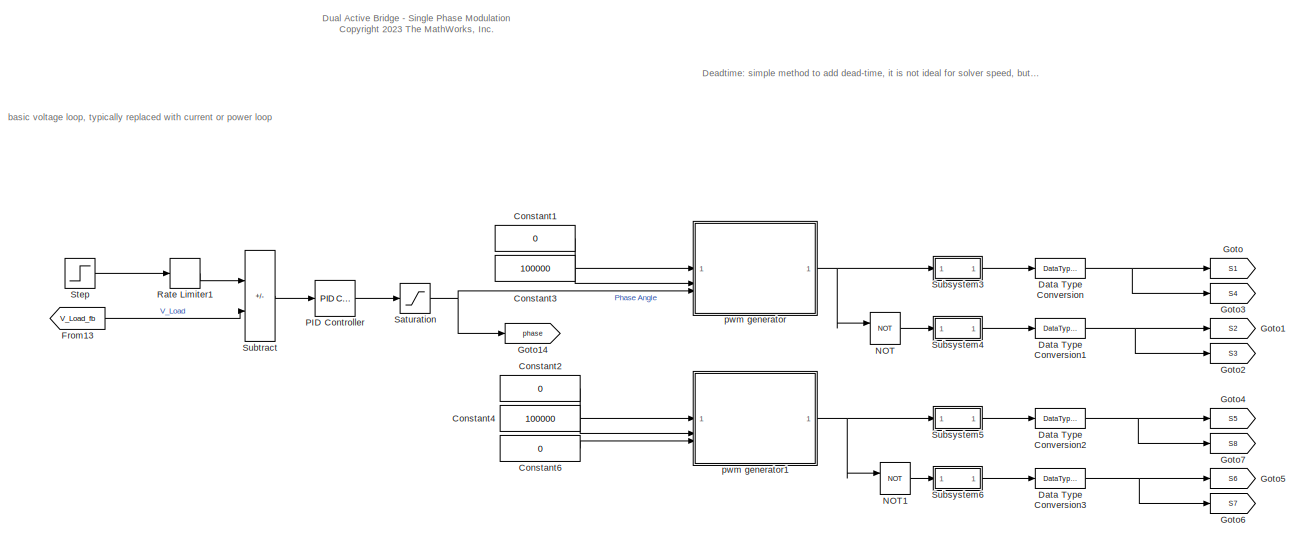
[diagram: root canvas - part 1/3, top center region]
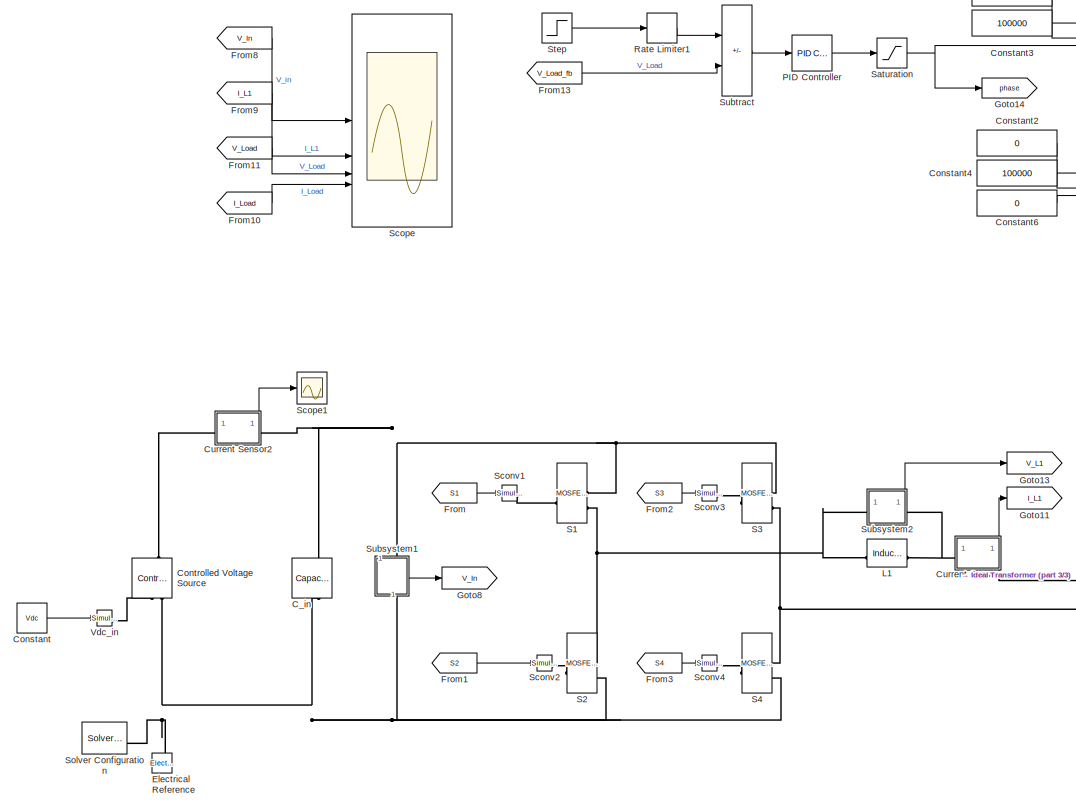
[diagram: root canvas - part 2/3, left side, full height]
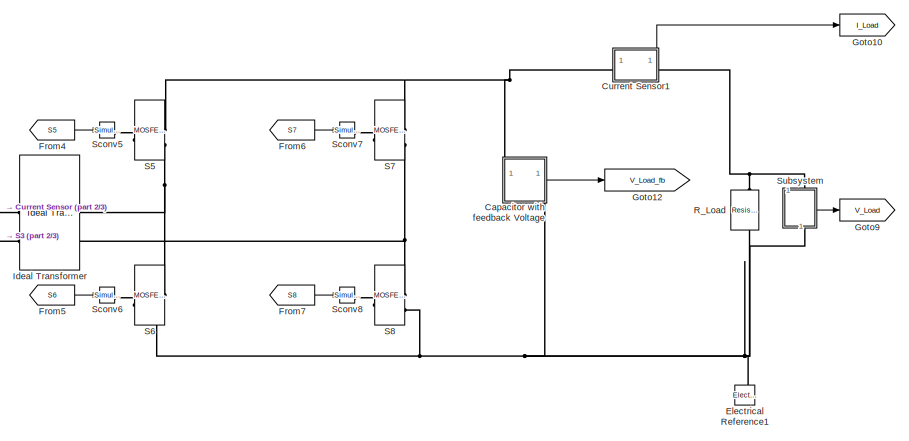
[diagram: root canvas - part 3/3, bottom right region]
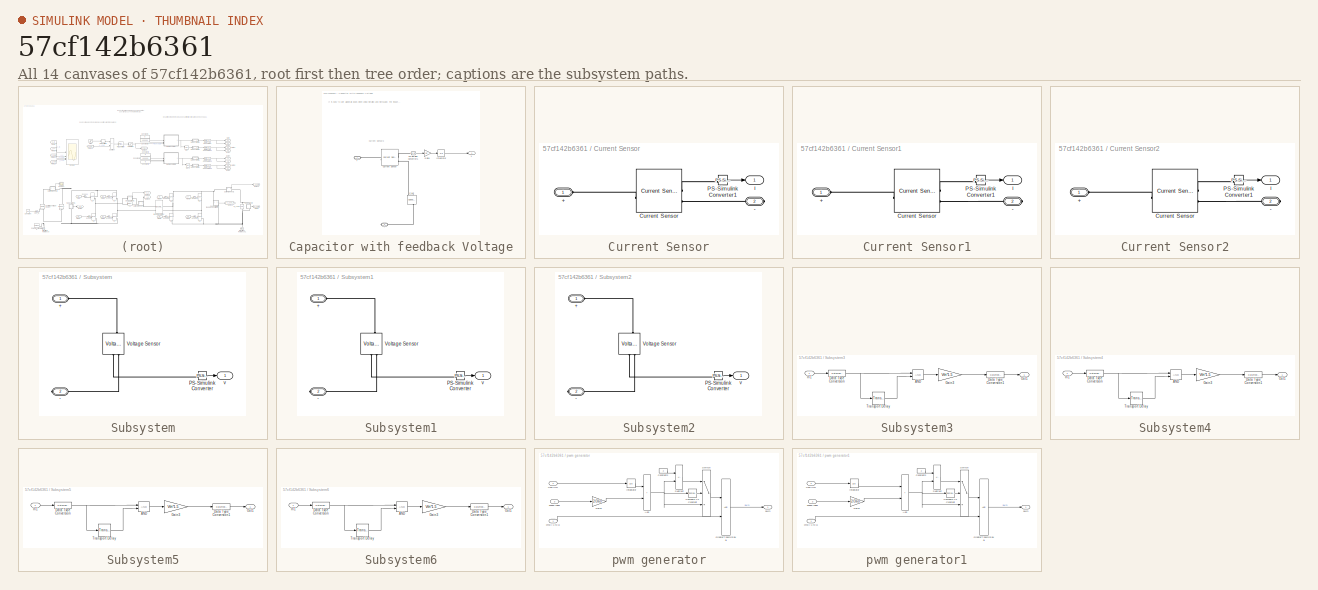
[diagram: thumbnail index - all 14 canvases of the model, root first then tree order]
MODEL slx_57cf142b6361
KIND model
CONFIG AbsTol = auto
CONFIG EnableMultiTasking = off
CONFIG FixedStep = auto
CONFIG MaxStep = 1/100000
CONFIG MinStep = auto
CONFIG RelTol = 1e-3
CONFIG SampleTimeConstraint = Unconstrained
CONFIG SolverName = ode23t
CONFIG StartFcn = tic
CONFIG StartTime = 0.0
CONFIG StopFcn = toc
CONFIG StopTime = 1/100000*10000
BLOCK [Reference] C_in  REF=fl_lib/Electrical/Electrical Elements/Capacitor
  NameLocation = left
  SourceBlock = fl_lib/Electrical/Electrical Elements/Capacitor
  SourceType = Capacitor
BLOCK [SubSystem] Capacitor with feedback Voltage
  PortSchema = {"entries":[{"content":{"sides":[{"content":{"connectorIds":[]},"type":"ConnectorPlacement.EquallySpacedRectSide","uuid":"5da35822-cc2b-4e57-8881-bcae1460177c"},{"content":{"connectorIds":["Out1"],"side":"RIGHT"},"type":"ConnectorPlacement.EquallySpacedRectSide","uuid":"59b12fbe-0c29-41c5-8e85-a266901cfbba"},{"content":{"connectorIds":["LConn1"],"side":"TOP"},"type":"ConnectorPlacement.EquallySpac...<+395ch>
BLOCK [PMIOPort] Capacitor with feedback Voltage/+
  Side = Left
BLOCK [PMIOPort] Capacitor with feedback Voltage/-
  Port = 2
  Side = Right
BLOCK [Reference] Capacitor with feedback Voltage/C_out  REF=fl_lib/Electrical/Electrical Elements/Capacitor
  NameLocation = left
  SourceBlock = fl_lib/Electrical/Electrical Elements/Capacitor
  SourceType = Capacitor
BLOCK [Reference] Capacitor with feedback Voltage/Current Sensor  REF=fl_lib/Electrical/Electrical Sensors/Current Sensor
  SourceBlock = fl_lib/Electrical/Electrical Sensors/Current Sensor
  SourceType = Current Sensor
BLOCK [Gain] Capacitor with feedback Voltage/Gain4
  Gain = 1/C
BLOCK [Integrator] Capacitor with feedback Voltage/Integrator
  InitialCondition = 400
BLOCK [Reference] Capacitor with feedback Voltage/PS-Simulink Converter1  REF=nesl_utility/PS-Simulink
Converter
  SourceBlock = nesl_utility/PS-Simulink\nConverter
  SourceType = PS-Simulink\nConverter
BLOCK [Outport] Capacitor with feedback Voltage/v
BLOCK [Constant] Constant
  Value = Vdc
BLOCK [Constant] Constant1
  Value = 0
BLOCK [Constant] Constant2
  Value = 0
BLOCK [Constant] Constant3
  Value = 100000
BLOCK [Constant] Constant4
  Value = 100000
BLOCK [Constant] Constant6
  Value = 0
BLOCK [Reference] Controlled Voltage Source  REF=fl_lib/Electrical/Electrical Sources/Controlled Voltage
Source
  NameLocation = right
  SourceBlock = fl_lib/Electrical/Electrical Sources/Controlled Voltage\nSource
  SourceType = Controlled Voltage\nSource
BLOCK [SubSystem] Current Sensor
  PortSchema = {"entries":[{"content":{"sides":[{"content":{"connectorIds":["LConn1"]},"type":"ConnectorPlacement.EquallySpacedRectSide","uuid":"e9388151-e471-4783-81c5-5134e1313d7c"},{"content":{"connectorIds":["RConn1"],"side":"RIGHT"},"type":"ConnectorPlacement.EquallySpacedRectSide","uuid":"bcb23f28-0826-4736-ab91-150a314eb643"},{"content":{"connectorIds":["Out1"],"side":"TOP"},"type":"ConnectorPlacement.Equ...<+251ch>  <repeated x6 — deduplicated; at blocks: Current Sensor, Current Sensor1, Current Sensor2, Subsystem, Subsystem1, Subsystem2>
BLOCK [PMIOPort] Current Sensor/+
  Side = Left
BLOCK [PMIOPort] Current Sensor/-
  Port = 2
  Side = Right
BLOCK [Reference] Current Sensor/Current Sensor  REF=fl_lib/Electrical/Electrical Sensors/Current Sensor
  SourceBlock = fl_lib/Electrical/Electrical Sensors/Current Sensor
  SourceType = Current Sensor
BLOCK [Reference] Current Sensor/PS-Simulink Converter1  REF=nesl_utility/PS-Simulink
Converter
  SourceBlock = nesl_utility/PS-Simulink\nConverter
  SourceType = PS-Simulink\nConverter
BLOCK [Outport] Current Sensor/i
BLOCK [SubSystem] Current Sensor1
BLOCK [PMIOPort] Current Sensor1/+
  Side = Left
BLOCK [PMIOPort] Current Sensor1/-
  Port = 2
  Side = Right
BLOCK [Reference] Current Sensor1/Current Sensor  REF=fl_lib/Electrical/Electrical Sensors/Current Sensor
  SourceBlock = fl_lib/Electrical/Electrical Sensors/Current Sensor
  SourceType = Current Sensor
BLOCK [Reference] Current Sensor1/PS-Simulink Converter1  REF=nesl_utility/PS-Simulink
Converter
  SourceBlock = nesl_utility/PS-Simulink\nConverter
  SourceType = PS-Simulink\nConverter
BLOCK [Outport] Current Sensor1/i
BLOCK [SubSystem] Current Sensor2
BLOCK [PMIOPort] Current Sensor2/+
  Side = Left
BLOCK [PMIOPort] Current Sensor2/-
  Port = 2
  Side = Right
BLOCK [Reference] Current Sensor2/Current Sensor  REF=fl_lib/Electrical/Electrical Sensors/Current Sensor
  SourceBlock = fl_lib/Electrical/Electrical Sensors/Current Sensor
  SourceType = Current Sensor
BLOCK [Reference] Current Sensor2/PS-Simulink Converter1  REF=nesl_utility/PS-Simulink
Converter
  SourceBlock = nesl_utility/PS-Simulink\nConverter
  SourceType = PS-Simulink\nConverter
BLOCK [Outport] Current Sensor2/i
BLOCK [DataTypeConversion] Data Type Conversion
  OutDataTypeStr = double
  RndMeth = Floor
  SaturateOnIntegerOverflow = off
BLOCK [DataTypeConversion] Data Type Conversion1
  OutDataTypeStr = double
  RndMeth = Floor
  SaturateOnIntegerOverflow = off
BLOCK [DataTypeConversion] Data Type Conversion2
  OutDataTypeStr = double
  RndMeth = Floor
  SaturateOnIntegerOverflow = off
BLOCK [DataTypeConversion] Data Type Conversion3
  OutDataTypeStr = double
  RndMeth = Floor
  SaturateOnIntegerOverflow = off
BLOCK [Reference] Electrical Reference  REF=fl_lib/Electrical/Electrical Elements/Electrical Reference
  NameLocation = right
  SourceBlock = fl_lib/Electrical/Electrical Elements/Electrical Reference
  SourceType = Electrical Reference
BLOCK [Reference] Electrical Reference1  REF=fl_lib/Electrical/Electrical Elements/Electrical Reference
  NameLocation = right
  SourceBlock = fl_lib/Electrical/Electrical Elements/Electrical Reference
  SourceType = Electrical Reference
BLOCK [From] From
  GotoTag = S1
BLOCK [From] From1
  GotoTag = S2
BLOCK [From] From10
  GotoTag = I_Load
BLOCK [From] From11
  GotoTag = V_Load
BLOCK [From] From13
  GotoTag = V_Load_fb
BLOCK [From] From2
  GotoTag = S3
BLOCK [From] From3
  GotoTag = S4
BLOCK [From] From4
  GotoTag = S5
BLOCK [From] From5
  GotoTag = S6
BLOCK [From] From6
  GotoTag = S7
BLOCK [From] From7
  GotoTag = S8
BLOCK [From] From8
  GotoTag = V_In
BLOCK [From] From9
  GotoTag = I_L1
BLOCK [Goto] Goto
  GotoTag = S1
BLOCK [Goto] Goto1
  GotoTag = S2
BLOCK [Goto] Goto10
  GotoTag = I_Load
BLOCK [Goto] Goto11
  GotoTag = I_L1
BLOCK [Goto] Goto12
  GotoTag = V_Load_fb
BLOCK [Goto] Goto13
  GotoTag = V_L1
BLOCK [Goto] Goto14
  GotoTag = phase
BLOCK [Goto] Goto2
  GotoTag = S3
BLOCK [Goto] Goto3
  GotoTag = S4
BLOCK [Goto] Goto4
  GotoTag = S5
BLOCK [Goto] Goto5
  GotoTag = S6
BLOCK [Goto] Goto6
  GotoTag = S7
BLOCK [Goto] Goto7
  GotoTag = S8
BLOCK [Goto] Goto8
  GotoTag = V_In
BLOCK [Goto] Goto9
  GotoTag = V_Load
BLOCK [Reference] Ideal Transformer  REF=fl_lib/Electrical/Electrical Elements/Ideal Transformer
  SourceBlock = fl_lib/Electrical/Electrical Elements/Ideal Transformer
  SourceType = Ideal Transformer
BLOCK [Reference] L1  REF=fl_lib/Electrical/Electrical Elements/Inductor
  SourceBlock = fl_lib/Electrical/Electrical Elements/Inductor
  SourceType = Inductor
BLOCK [Logic] NOT
  AllPortsSameDT = off
  IconShape = distinctive
  Operator = NOT
  OutDataTypeStr = boolean
BLOCK [Logic] NOT1
  AllPortsSameDT = off
  IconShape = distinctive
  Operator = NOT
  OutDataTypeStr = boolean
BLOCK [Reference] PID Controller  REF=slpidlib/PID Controller
  SourceBlock = slpidlib/PID Controller
  SourceType = PID 1dof
BLOCK [Reference] R_Load  REF=fl_lib/Electrical/Electrical Elements/Resistor
  NameLocation = left
  SourceBlock = fl_lib/Electrical/Electrical Elements/Resistor
  SourceType = Resistor
BLOCK [RateLimiter] Rate Limiter1
  FallingSlewLimit = -fsw*2
  InitialCondition = 400
  RisingSlewLimit = fsw*2
  SampleTimeMode = inherited
BLOCK [Reference] S1  REF=ee_lib/Semiconductors &
Converters/MOSFET
(Ideal,
Switching)
  SourceBlock = ee_lib/Semiconductors &\nConverters/MOSFET\n(Ideal,\nSwitching)
  SourceType = MOSFET\n(Ideal,\nSwitching)
BLOCK [Reference] S2  REF=ee_lib/Semiconductors &
Converters/MOSFET
(Ideal,
Switching)
  SourceBlock = ee_lib/Semiconductors &\nConverters/MOSFET\n(Ideal,\nSwitching)
  SourceType = MOSFET\n(Ideal,\nSwitching)
BLOCK [Reference] S3  REF=ee_lib/Semiconductors &
Converters/MOSFET
(Ideal,
Switching)
  SourceBlock = ee_lib/Semiconductors &\nConverters/MOSFET\n(Ideal,\nSwitching)
  SourceType = MOSFET\n(Ideal,\nSwitching)
BLOCK [Reference] S4  REF=ee_lib/Semiconductors &
Converters/MOSFET
(Ideal,
Switching)
  SourceBlock = ee_lib/Semiconductors &\nConverters/MOSFET\n(Ideal,\nSwitching)
  SourceType = MOSFET\n(Ideal,\nSwitching)
BLOCK [Reference] S5  REF=ee_lib/Semiconductors &
Converters/MOSFET
(Ideal,
Switching)
  SourceBlock = ee_lib/Semiconductors &\nConverters/MOSFET\n(Ideal,\nSwitching)
  SourceType = MOSFET\n(Ideal,\nSwitching)
BLOCK [Reference] S6  REF=ee_lib/Semiconductors &
Converters/MOSFET
(Ideal,
Switching)
  SourceBlock = ee_lib/Semiconductors &\nConverters/MOSFET\n(Ideal,\nSwitching)
  SourceType = MOSFET\n(Ideal,\nSwitching)
BLOCK [Reference] S7  REF=ee_lib/Semiconductors &
Converters/MOSFET
(Ideal,
Switching)
  SourceBlock = ee_lib/Semiconductors &\nConverters/MOSFET\n(Ideal,\nSwitching)
  SourceType = MOSFET\n(Ideal,\nSwitching)
BLOCK [Reference] S8  REF=ee_lib/Semiconductors &
Converters/MOSFET
(Ideal,
Switching)
  SourceBlock = ee_lib/Semiconductors &\nConverters/MOSFET\n(Ideal,\nSwitching)
  SourceType = MOSFET\n(Ideal,\nSwitching)
BLOCK [Saturate] Saturation
  LowerLimit = 0
  UpperLimit = 180
BLOCK [Reference] Sconv1  REF=nesl_utility/Simulink-PS
Converter
  SourceBlock = nesl_utility/Simulink-PS\nConverter
  SourceType = Simulink-PS\nConverter
BLOCK [Reference] Sconv2  REF=nesl_utility/Simulink-PS
Converter
  SourceBlock = nesl_utility/Simulink-PS\nConverter
  SourceType = Simulink-PS\nConverter
BLOCK [Reference] Sconv3  REF=nesl_utility/Simulink-PS
Converter
  SourceBlock = nesl_utility/Simulink-PS\nConverter
  SourceType = Simulink-PS\nConverter
BLOCK [Reference] Sconv4  REF=nesl_utility/Simulink-PS
Converter
  SourceBlock = nesl_utility/Simulink-PS\nConverter
  SourceType = Simulink-PS\nConverter
BLOCK [Reference] Sconv5  REF=nesl_utility/Simulink-PS
Converter
  SourceBlock = nesl_utility/Simulink-PS\nConverter
  SourceType = Simulink-PS\nConverter
BLOCK [Reference] Sconv6  REF=nesl_utility/Simulink-PS
Converter
  SourceBlock = nesl_utility/Simulink-PS\nConverter
  SourceType = Simulink-PS\nConverter
BLOCK [Reference] Sconv7  REF=nesl_utility/Simulink-PS
Converter
  SourceBlock = nesl_utility/Simulink-PS\nConverter
  SourceType = Simulink-PS\nConverter
BLOCK [Reference] Sconv8  REF=nesl_utility/Simulink-PS
Converter
  SourceBlock = nesl_utility/Simulink-PS\nConverter
  SourceType = Simulink-PS\nConverter
BLOCK [Scope] Scope
  Floating = off
  NumInputPorts = 4
  ScopeSpecificationString = Simulink.scopes.TimeScopeBlockCfg('CurrentConfiguration', extmgr.ConfigurationSet(extmgr.Configuration('Core','General UI',true),extmgr.Configuration('Core','Source UI',true),extmgr.Configuration('Sources','WiredSimulink',true),extmgr.Configuration('Visuals','Time Domain',true,'SerializedDisplays',{struct('MinYLimReal','700.00000','MaxYLimReal','900.00000','YLabelReal','','MinYLimMag','700.00000',...<+3431ch>
BLOCK [Scope] Scope1
  Floating = off
  NumInputPorts = 1
  ScopeSpecificationString = Simulink.scopes.TimeScopeBlockCfg('CurrentConfiguration', extmgr.ConfigurationSet(extmgr.Configuration('Core','General UI',true),extmgr.Configuration('Core','Source UI',true),extmgr.Configuration('Sources','WiredSimulink',true,'DataLoggingVariableName','ScopeData2'),extmgr.Configuration('Visuals','Time Domain',true,'SerializedDisplays',{struct('MinYLimReal','-135.25762','MaxYLimReal','135.32162','...<+1490ch>
BLOCK [Reference] Solver Configuration  REF=nesl_utility/Solver
Configuration
  SourceBlock = nesl_utility/Solver\nConfiguration
  SourceType = Solver\nConfiguration
BLOCK [Step] Step
  After = 500
  Before = 400
  SampleTime = 0
  Time = 1/100000*10000/2
BLOCK [SubSystem] Subsystem
  NameLocation = left
BLOCK [PMIOPort] Subsystem/+
  Side = Left
BLOCK [PMIOPort] Subsystem/-
  Port = 2
  Side = Right
BLOCK [Reference] Subsystem/PS-Simulink Converter  REF=nesl_utility/PS-Simulink
Converter
  SourceBlock = nesl_utility/PS-Simulink\nConverter
  SourceType = PS-Simulink\nConverter
BLOCK [Reference] Subsystem/Voltage Sensor  REF=fl_lib/Electrical/Electrical Sensors/Voltage Sensor
  NameLocation = right
  SourceBlock = fl_lib/Electrical/Electrical Sensors/Voltage Sensor
  SourceType = Voltage Sensor
BLOCK [Outport] Subsystem/v
BLOCK [SubSystem] Subsystem1
  NameLocation = left
BLOCK [PMIOPort] Subsystem1/+
  Side = Left
BLOCK [PMIOPort] Subsystem1/-
  Port = 2
  Side = Right
BLOCK [Reference] Subsystem1/PS-Simulink Converter  REF=nesl_utility/PS-Simulink
Converter
  SourceBlock = nesl_utility/PS-Simulink\nConverter
  SourceType = PS-Simulink\nConverter
BLOCK [Reference] Subsystem1/Voltage Sensor  REF=fl_lib/Electrical/Electrical Sensors/Voltage Sensor
  NameLocation = right
  SourceBlock = fl_lib/Electrical/Electrical Sensors/Voltage Sensor
  SourceType = Voltage Sensor
BLOCK [Outport] Subsystem1/v
BLOCK [SubSystem] Subsystem2
BLOCK [PMIOPort] Subsystem2/+
  Side = Left
BLOCK [PMIOPort] Subsystem2/-
  Port = 2
  Side = Right
BLOCK [Reference] Subsystem2/PS-Simulink Converter  REF=nesl_utility/PS-Simulink
Converter
  SourceBlock = nesl_utility/PS-Simulink\nConverter
  SourceType = PS-Simulink\nConverter
BLOCK [Reference] Subsystem2/Voltage Sensor  REF=fl_lib/Electrical/Electrical Sensors/Voltage Sensor
  NameLocation = right
  SourceBlock = fl_lib/Electrical/Electrical Sensors/Voltage Sensor
  SourceType = Voltage Sensor
BLOCK [Outport] Subsystem2/v
BLOCK [SubSystem] Subsystem3
  Commented = through
BLOCK [Logic] Subsystem3/AND
  AllPortsSameDT = off
  IconShape = distinctive
  OutDataTypeStr = boolean
BLOCK [DataTypeConversion] Subsystem3/Data Type Conversion
  RndMeth = Floor
  SaturateOnIntegerOverflow = off
BLOCK [DataTypeConversion] Subsystem3/Data Type Conversion1
  OutDataTypeStr = double
  RndMeth = Floor
  SaturateOnIntegerOverflow = off
BLOCK [Gain] Subsystem3/Gain3
  Gain = Vth*1.5
BLOCK [Inport] Subsystem3/In1
BLOCK [Outport] Subsystem3/Out1
BLOCK [TransportDelay] Subsystem3/Transport Delay
  DelayTime = tdead
BLOCK [SubSystem] Subsystem4
  Commented = through
BLOCK [Logic] Subsystem4/AND
  AllPortsSameDT = off
  IconShape = distinctive
  OutDataTypeStr = boolean
BLOCK [DataTypeConversion] Subsystem4/Data Type Conversion
  RndMeth = Floor
  SaturateOnIntegerOverflow = off
BLOCK [DataTypeConversion] Subsystem4/Data Type Conversion1
  OutDataTypeStr = double
  RndMeth = Floor
  SaturateOnIntegerOverflow = off
BLOCK [Gain] Subsystem4/Gain3
  Gain = Vth*1.5
BLOCK [Inport] Subsystem4/In1
BLOCK [Outport] Subsystem4/Out1
BLOCK [TransportDelay] Subsystem4/Transport Delay
  DelayTime = tdead
BLOCK [SubSystem] Subsystem5
  Commented = through
BLOCK [Logic] Subsystem5/AND
  AllPortsSameDT = off
  IconShape = distinctive
  OutDataTypeStr = boolean
BLOCK [DataTypeConversion] Subsystem5/Data Type Conversion
  RndMeth = Floor
  SaturateOnIntegerOverflow = off
BLOCK [DataTypeConversion] Subsystem5/Data Type Conversion1
  OutDataTypeStr = double
  RndMeth = Floor
  SaturateOnIntegerOverflow = off
BLOCK [Gain] Subsystem5/Gain3
  Gain = Vth*1.5
BLOCK [Inport] Subsystem5/In1
BLOCK [Outport] Subsystem5/Out1
BLOCK [TransportDelay] Subsystem5/Transport Delay
  DelayTime = tdead
BLOCK [SubSystem] Subsystem6
  Commented = through
BLOCK [Logic] Subsystem6/AND
  AllPortsSameDT = off
  IconShape = distinctive
  OutDataTypeStr = boolean
BLOCK [DataTypeConversion] Subsystem6/Data Type Conversion
  RndMeth = Floor
  SaturateOnIntegerOverflow = off
BLOCK [DataTypeConversion] Subsystem6/Data Type Conversion1
  OutDataTypeStr = double
  RndMeth = Floor
  SaturateOnIntegerOverflow = off
BLOCK [Gain] Subsystem6/Gain3
  Gain = Vth*1.5
BLOCK [Inport] Subsystem6/In1
BLOCK [Outport] Subsystem6/Out1
BLOCK [TransportDelay] Subsystem6/Transport Delay
  DelayTime = tdead
BLOCK [Sum] Subtract
  IconShape = rectangular
  Inputs = +-
BLOCK [Reference] Vdc_in  REF=nesl_utility/Simulink-PS
Converter
  SourceBlock = nesl_utility/Simulink-PS\nConverter
  SourceType = Simulink-PS\nConverter
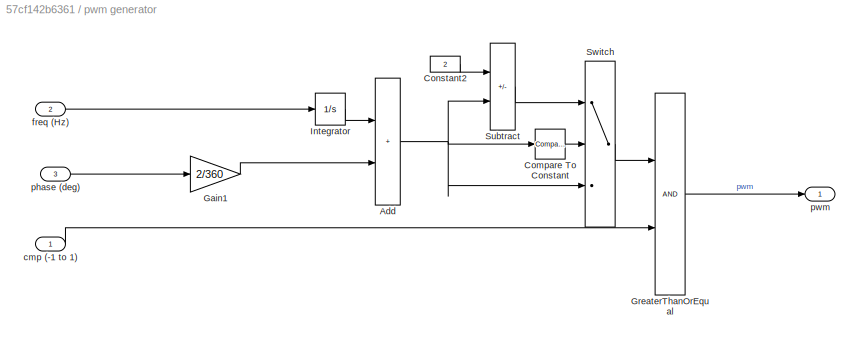
BLOCK [SubSystem] pwm generator
BLOCK [Sum] pwm generator/Add
  IconShape = rectangular
BLOCK [Reference] pwm generator/Compare To Constant  REF=simulink/Logic and Bit
Operations/Compare
To Constant
  NameLocation = top
  SourceBlock = simulink/Logic and Bit\nOperations/Compare\nTo Constant
  SourceType = Compare To Constant
BLOCK [Constant] pwm generator/Constant2
  Value = 2
BLOCK [Gain] pwm generator/Gain1
  Gain = 2/360
BLOCK [RelationalOperator] pwm generator/GreaterThanOrEqual
  InputSameDT = off
  OutDataTypeStr = boolean
  RndMeth = Simplest
BLOCK [Integrator] pwm generator/Integrator
  WrapState = on
  WrappedStateLowerValue = -1
  WrappedStateUpperValue = 1
BLOCK [Sum] pwm generator/Subtract
  IconShape = rectangular
  Inputs = -+
BLOCK [Switch] pwm generator/Switch
  Criteria = u2 > Threshold
  InputSameDT = off
  SaturateOnIntegerOverflow = off
BLOCK [Inport] pwm generator/cmp (-1 to 1)
BLOCK [Inport] pwm generator/freq (Hz)
  Port = 2
BLOCK [Inport] pwm generator/phase (deg)
  Port = 3
BLOCK [Outport] pwm generator/pwm
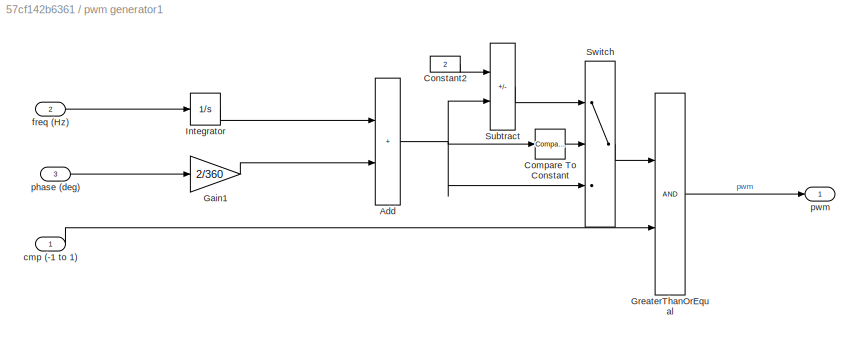
BLOCK [SubSystem] pwm generator1
BLOCK [Sum] pwm generator1/Add
  IconShape = rectangular
BLOCK [Reference] pwm generator1/Compare To Constant  REF=simulink/Logic and Bit
Operations/Compare
To Constant
  NameLocation = top
  SourceBlock = simulink/Logic and Bit\nOperations/Compare\nTo Constant
  SourceType = Compare To Constant
BLOCK [Constant] pwm generator1/Constant2
  Value = 2
BLOCK [Gain] pwm generator1/Gain1
  Gain = 2/360
BLOCK [RelationalOperator] pwm generator1/GreaterThanOrEqual
  InputSameDT = off
  OutDataTypeStr = boolean
  RndMeth = Simplest
BLOCK [Integrator] pwm generator1/Integrator
  WrapState = on
  WrappedStateLowerValue = -1
  WrappedStateUpperValue = 1
BLOCK [Sum] pwm generator1/Subtract
  IconShape = rectangular
  Inputs = -+
BLOCK [Switch] pwm generator1/Switch
  Criteria = u2 > Threshold
  InputSameDT = off
  SaturateOnIntegerOverflow = off
BLOCK [Inport] pwm generator1/cmp (-1 to 1)
BLOCK [Inport] pwm generator1/freq (Hz)
  Port = 2
BLOCK [Inport] pwm generator1/phase (deg)
  Port = 3
BLOCK [Outport] pwm generator1/pwm
ANNOTATION (root): Dual Active Bridge - Single Phase Modulation <copyright redacted>
ANNOTATION (root): Deadtime: simple method to add dead-time, it is not ideal for solver speed, but useful for quickly adding and removing.
ANNOTATION (root): basic voltage loop, typically replaced with current or power loop
ANNOTATION Capacitor with feedback Voltage: Current Sensor3
ANNOTATION Capacitor with feedback Voltage: It is easy to get algebraic loops when using simulink and simscape. For inductors and capacitors, it can be easy to bypass this by integrating for the other state in Simulink instead of taking it directly from Simscape. This could introduce error of very long simulations
LINE Capacitor with feedback Voltage/Gain4:1 -> Capacitor with feedback Voltage/Integrator:1
LINE Capacitor with feedback Voltage/Integrator:1 -> Capacitor with feedback Voltage/v:1
LINE Capacitor with feedback Voltage/PS-Simulink Converter1:1 -> Capacitor with feedback Voltage/Gain4:1
LINE Capacitor with feedback Voltage:1 -> Goto12:1
LINE Constant1:1 -> pwm generator:1
LINE Constant2:1 -> pwm generator1:1
LINE Constant3:1 -> pwm generator:2
LINE Constant4:1 -> pwm generator1:2
LINE Constant6:1 -> pwm generator1:3
LINE Constant:1 -> Vdc_in:1
LINE Current Sensor/PS-Simulink Converter1:1 -> Current Sensor/i:1
LINE Current Sensor1/PS-Simulink Converter1:1 -> Current Sensor1/i:1
LINE Current Sensor1:1 -> Goto10:1
LINE Current Sensor2/PS-Simulink Converter1:1 -> Current Sensor2/i:1
LINE Current Sensor2:1 -> Scope1:1
LINE Current Sensor:1 -> Goto11:1
NET Data Type Conversion1:1 -> Goto1:1, Goto2:1
NET Data Type Conversion2:1 -> Goto4:1, Goto7:1
NET Data Type Conversion3:1 -> Goto5:1, Goto6:1
NET Data Type Conversion:1 -> Goto3:1, Goto:1
LINE From10:1 -> Scope:4
LINE From11:1 -> Scope:3
LINE From13:1 -> Subtract:2
LINE From1:1 -> Sconv2:1
LINE From2:1 -> Sconv3:1
LINE From3:1 -> Sconv4:1
LINE From4:1 -> Sconv5:1
LINE From5:1 -> Sconv6:1
LINE From6:1 -> Sconv7:1
LINE From7:1 -> Sconv8:1
LINE From8:1 -> Scope:1
LINE From9:1 -> Scope:2
LINE From:1 -> Sconv1:1
LINE NOT1:1 -> Subsystem6:1
LINE NOT:1 -> Subsystem4:1
LINE PID Controller:1 -> Saturation:1
LINE Rate Limiter1:1 -> Subtract:1
NET Saturation:1 -> Goto14:1, pwm generator:3
LINE Step:1 -> Rate Limiter1:1
LINE Subsystem/PS-Simulink Converter:1 -> Subsystem/v:1
LINE Subsystem1/PS-Simulink Converter:1 -> Subsystem1/v:1
LINE Subsystem1:1 -> Goto8:1
LINE Subsystem2/PS-Simulink Converter:1 -> Subsystem2/v:1
LINE Subsystem2:1 -> Goto13:1
LINE Subsystem3/AND:1 -> Subsystem3/Gain3:1
LINE Subsystem3/Data Type Conversion1:1 -> Subsystem3/Out1:1
NET Subsystem3/Data Type Conversion:1 -> Subsystem3/AND:1, Subsystem3/Transport Delay:1
LINE Subsystem3/Gain3:1 -> Subsystem3/Data Type Conversion1:1
LINE Subsystem3/In1:1 -> Subsystem3/Data Type Conversion:1
LINE Subsystem3/Transport Delay:1 -> Subsystem3/AND:2
LINE Subsystem3:1 -> Data Type Conversion:1
LINE Subsystem4/AND:1 -> Subsystem4/Gain3:1
LINE Subsystem4/Data Type Conversion1:1 -> Subsystem4/Out1:1
NET Subsystem4/Data Type Conversion:1 -> Subsystem4/AND:1, Subsystem4/Transport Delay:1
LINE Subsystem4/Gain3:1 -> Subsystem4/Data Type Conversion1:1
LINE Subsystem4/In1:1 -> Subsystem4/Data Type Conversion:1
LINE Subsystem4/Transport Delay:1 -> Subsystem4/AND:2
LINE Subsystem4:1 -> Data Type Conversion1:1
LINE Subsystem5/AND:1 -> Subsystem5/Gain3:1
LINE Subsystem5/Data Type Conversion1:1 -> Subsystem5/Out1:1
NET Subsystem5/Data Type Conversion:1 -> Subsystem5/AND:1, Subsystem5/Transport Delay:1
LINE Subsystem5/Gain3:1 -> Subsystem5/Data Type Conversion1:1
LINE Subsystem5/In1:1 -> Subsystem5/Data Type Conversion:1
LINE Subsystem5/Transport Delay:1 -> Subsystem5/AND:2
LINE Subsystem5:1 -> Data Type Conversion2:1
LINE Subsystem6/AND:1 -> Subsystem6/Gain3:1
LINE Subsystem6/Data Type Conversion1:1 -> Subsystem6/Out1:1
NET Subsystem6/Data Type Conversion:1 -> Subsystem6/AND:1, Subsystem6/Transport Delay:1
LINE Subsystem6/Gain3:1 -> Subsystem6/Data Type Conversion1:1
LINE Subsystem6/In1:1 -> Subsystem6/Data Type Conversion:1
LINE Subsystem6/Transport Delay:1 -> Subsystem6/AND:2
LINE Subsystem6:1 -> Data Type Conversion3:1
LINE Subsystem:1 -> Goto9:1
LINE Subtract:1 -> PID Controller:1
NET pwm generator/Add:1 -> pwm generator/Compare To Constant:1, pwm generator/Subtract:2, pwm generator/Switch:3
LINE pwm generator/Compare To Constant:1 -> pwm generator/Switch:2
LINE pwm generator/Constant2:1 -> pwm generator/Subtract:1
LINE pwm generator/Gain1:1 -> pwm generator/Add:2
LINE pwm generator/GreaterThanOrEqual:1 -> pwm generator/pwm:1
LINE pwm generator/Integrator:1 -> pwm generator/Add:1
LINE pwm generator/Subtract:1 -> pwm generator/Switch:1
LINE pwm generator/Switch:1 -> pwm generator/GreaterThanOrEqual:1
LINE pwm generator/cmp (-1 to 1):1 -> pwm generator/GreaterThanOrEqual:2
LINE pwm generator/freq (Hz):1 -> pwm generator/Integrator:1
LINE pwm generator/phase (deg):1 -> pwm generator/Gain1:1
NET pwm generator1/Add:1 -> pwm generator1/Compare To Constant:1, pwm generator1/Subtract:2, pwm generator1/Switch:3
LINE pwm generator1/Compare To Constant:1 -> pwm generator1/Switch:2
LINE pwm generator1/Constant2:1 -> pwm generator1/Subtract:1
LINE pwm generator1/Gain1:1 -> pwm generator1/Add:2
LINE pwm generator1/GreaterThanOrEqual:1 -> pwm generator1/pwm:1
LINE pwm generator1/Integrator:1 -> pwm generator1/Add:1
LINE pwm generator1/Subtract:1 -> pwm generator1/Switch:1
LINE pwm generator1/Switch:1 -> pwm generator1/GreaterThanOrEqual:1
LINE pwm generator1/cmp (-1 to 1):1 -> pwm generator1/GreaterThanOrEqual:2
LINE pwm generator1/freq (Hz):1 -> pwm generator1/Integrator:1
LINE pwm generator1/phase (deg):1 -> pwm generator1/Gain1:1
NET pwm generator1:1 -> NOT1:1, Subsystem5:1
NET pwm generator:1 -> NOT:1, Subsystem3:1
PNET net1: C_in:LConn1 -- Current Sensor2:RConn1 -- S1:RConn1 -- S3:RConn1 -- Subsystem1:LConn1
PNET net2: C_in:RConn1 -- Controlled Voltage Source:RConn2 -- Electrical Reference:LConn1 -- S2:RConn2 -- S4:RConn2 -- Solver Configuration:RConn1 -- Subsystem1:RConn1
PLINE Capacitor with feedback Voltage/+:RConn1 -- Capacitor with feedback Voltage/Current Sensor:LConn1
PLINE Capacitor with feedback Voltage/-:RConn1 -- Capacitor with feedback Voltage/C_out:RConn1
PLINE Capacitor with feedback Voltage/C_out:LConn1 -- Capacitor with feedback Voltage/Current Sensor:RConn2
PLINE Capacitor with feedback Voltage/Current Sensor:RConn1 -- Capacitor with feedback Voltage/PS-Simulink Converter1:LConn1
PNET net3: Capacitor with feedback Voltage:LConn1 -- Current Sensor1:LConn1 -- S5:RConn1 -- S7:RConn1
PNET net4: Capacitor with feedback Voltage:RConn1 -- Electrical Reference1:LConn1 -- R_Load:RConn1 -- S6:RConn2 -- S8:RConn2 -- Subsystem:RConn1
PLINE Controlled Voltage Source:LConn1 -- Current Sensor2:LConn1
PLINE Controlled Voltage Source:RConn1 -- Vdc_in:RConn1
PLINE Current Sensor/+:RConn1 -- Current Sensor/Current Sensor:LConn1
PLINE Current Sensor/-:RConn1 -- Current Sensor/Current Sensor:RConn2
PLINE Current Sensor/Current Sensor:RConn1 -- Current Sensor/PS-Simulink Converter1:LConn1
PLINE Current Sensor1/+:RConn1 -- Current Sensor1/Current Sensor:LConn1
PLINE Current Sensor1/-:RConn1 -- Current Sensor1/Current Sensor:RConn2
PLINE Current Sensor1/Current Sensor:RConn1 -- Current Sensor1/PS-Simulink Converter1:LConn1
PNET net5: Current Sensor1:RConn1 -- R_Load:LConn1 -- Subsystem:LConn1
PLINE Current Sensor2/+:RConn1 -- Current Sensor2/Current Sensor:LConn1
PLINE Current Sensor2/-:RConn1 -- Current Sensor2/Current Sensor:RConn2
PLINE Current Sensor2/Current Sensor:RConn1 -- Current Sensor2/PS-Simulink Converter1:LConn1
PNET net6: Current Sensor:LConn1 -- L1:RConn1 -- Subsystem2:RConn1
PLINE Current Sensor:RConn1 -- Ideal Transformer:LConn1
PNET net7: Ideal Transformer:LConn2 -- S3:RConn2 -- S4:RConn1
PNET net8: Ideal Transformer:RConn1 -- S5:RConn2 -- S6:RConn1
PNET net9: Ideal Transformer:RConn2 -- S7:RConn2 -- S8:RConn1
PNET net10: L1:LConn1 -- S1:RConn2 -- S2:RConn1 -- Subsystem2:LConn1
PLINE S1:LConn1 -- Sconv1:RConn1
PLINE S2:LConn1 -- Sconv2:RConn1
PLINE S3:LConn1 -- Sconv3:RConn1
PLINE S4:LConn1 -- Sconv4:RConn1
PLINE S5:LConn1 -- Sconv5:RConn1
PLINE S6:LConn1 -- Sconv6:RConn1
PLINE S7:LConn1 -- Sconv7:RConn1
PLINE S8:LConn1 -- Sconv8:RConn1
PLINE Subsystem/+:RConn1 -- Subsystem/Voltage Sensor:LConn1
PLINE Subsystem/-:RConn1 -- Subsystem/Voltage Sensor:RConn2
PLINE Subsystem/PS-Simulink Converter:LConn1 -- Subsystem/Voltage Sensor:RConn1
PLINE Subsystem1/+:RConn1 -- Subsystem1/Voltage Sensor:LConn1
PLINE Subsystem1/-:RConn1 -- Subsystem1/Voltage Sensor:RConn2
PLINE Subsystem1/PS-Simulink Converter:LConn1 -- Subsystem1/Voltage Sensor:RConn1
PLINE Subsystem2/+:RConn1 -- Subsystem2/Voltage Sensor:LConn1
PLINE Subsystem2/-:RConn1 -- Subsystem2/Voltage Sensor:RConn2
PLINE Subsystem2/PS-Simulink Converter:LConn1 -- Subsystem2/Voltage Sensor:RConn1
note: NET lines group one-source signal fan-out (src -> all destinations, sorted); 1:1 wires keep LINE; PNET lines group multi-terminal physical nets as a canonical sorted terminal list (undirected conserving connections); 2-terminal nets keep the pairwise PLINE form
